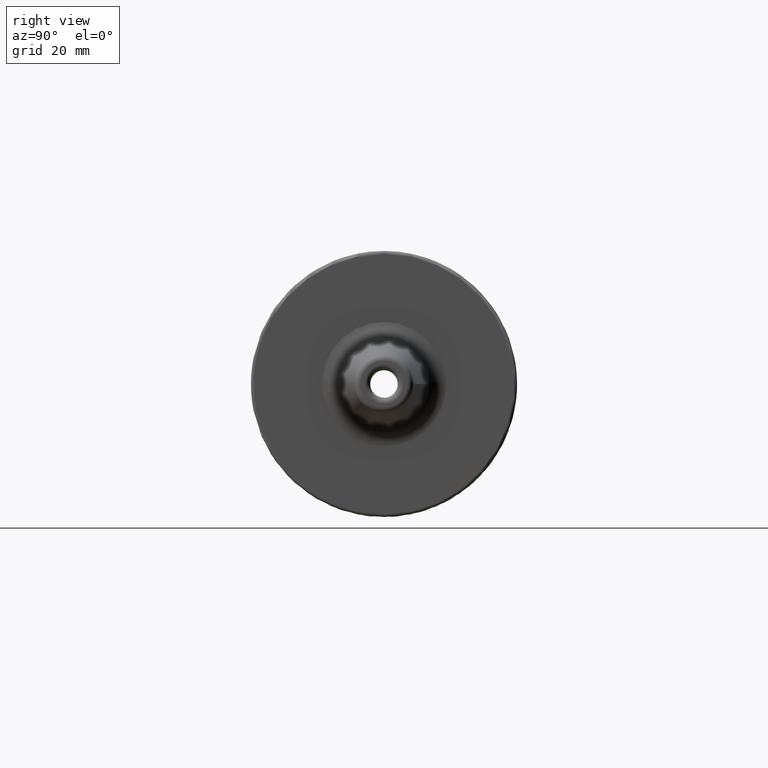
[diagram: clean part render]
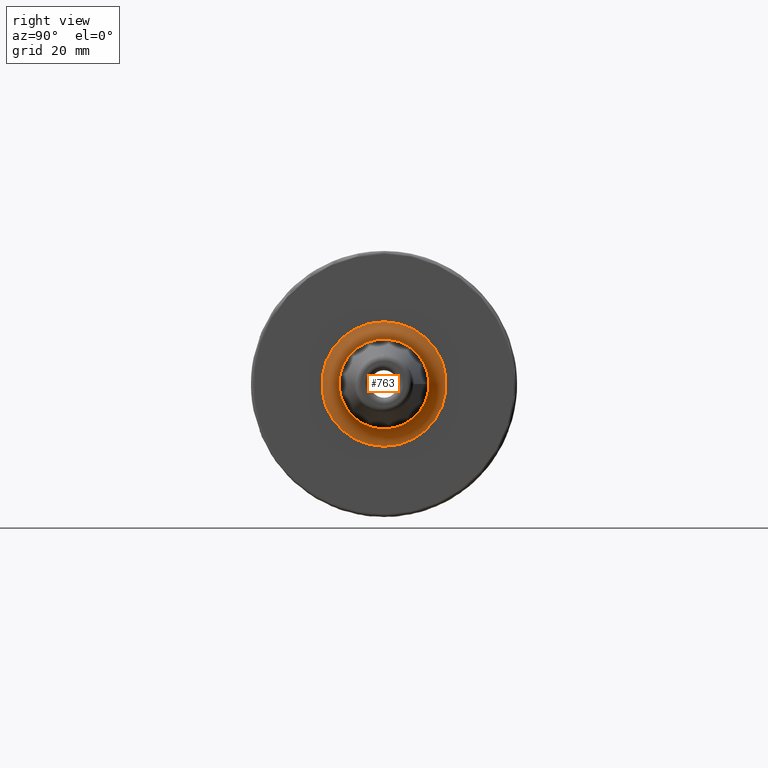
[diagram: same view with one face highlighted and labeled with its STEP entity id]
A machine part, right view. The second image highlights one B-rep face of the part: STEP entity #763.
In plain terms, the highlighted toroidal blend (fillet) surface has major radius 10.7638 mm and minor (blend) radius 3 mm.
Its self-contained STEP definition (entity closure, byte-faithful):
#164=FACE_OUTER_BOUND('',#212,.T.);
#212=EDGE_LOOP('',(#535,#536,#537,#538,#539));
#268=CIRCLE('',#843,7.77308433311076);
#269=CIRCLE('',#844,7.77308433311076);
#270=CIRCLE('',#846,3.);
#271=CIRCLE('',#847,10.7638363343101);
#323=VERTEX_POINT('',#1206);
#324=VERTEX_POINT('',#1208);
#325=VERTEX_POINT('',#1212);
#404=EDGE_CURVE('',#324,#323,#268,.T.);
#405=EDGE_CURVE('',#323,#324,#269,.T.);
#406=EDGE_CURVE('',#324,#325,#270,.T.);
#407=EDGE_CURVE('',#325,#325,#271,.T.);
#535=ORIENTED_EDGE('',*,*,#404,.T.);
#536=ORIENTED_EDGE('',*,*,#405,.T.);
#537=ORIENTED_EDGE('',*,*,#406,.T.);
#538=ORIENTED_EDGE('',*,*,#407,.T.);
#539=ORIENTED_EDGE('',*,*,#406,.F.);
#751=TOROIDAL_SURFACE('',#845,10.7638363343101,3.);
#763=ADVANCED_FACE('',(#164),#751,.F.);
#843=AXIS2_PLACEMENT_3D('',#1209,#966,#967);
#844=AXIS2_PLACEMENT_3D('',#1210,#968,#969);
#845=AXIS2_PLACEMENT_3D('',#1211,#970,#971);
#846=AXIS2_PLACEMENT_3D('',#1213,#972,#973);
#847=AXIS2_PLACEMENT_3D('',#1214,#974,#975);
#966=DIRECTION('center_axis',(-1.,0.,0.));
#967=DIRECTION('ref_axis',(0.,1.,1.22464679914735E-16));
#968=DIRECTION('center_axis',(-1.,0.,0.));
#969=DIRECTION('ref_axis',(0.,1.,1.22464679914735E-16));
#970=DIRECTION('center_axis',(-1.,-1.62798202122572E-21,0.));
#971=DIRECTION('ref_axis',(0.,0.,1.));
#972=DIRECTION('center_axis',(1.62798202122572E-21,-1.,1.22464679914735E-16));
#973=DIRECTION('ref_axis',(0.,-1.22464679914735E-16,-1.));
#974=DIRECTION('center_axis',(1.,1.62798202122572E-21,0.));
#975=DIRECTION('ref_axis',(-1.62798202122572E-21,1.,1.22464679914735E-16));
#1206=CARTESIAN_POINT('',(24.7646227128164,7.77308433311076,9.51928284804654E-16));
#1208=CARTESIAN_POINT('',(24.7646227128164,-9.51928667994645E-16,-7.77308433311076));
#1209=CARTESIAN_POINT('Origin',(24.7646227128164,0.,0.));
#1210=CARTESIAN_POINT('Origin',(24.7646227128164,0.,0.));
#1211=CARTESIAN_POINT('Origin',(25.,0.,0.));
#1212=CARTESIAN_POINT('',(22.,-1.31819465528195E-15,-10.7638363343101));
#1213=CARTESIAN_POINT('Origin',(25.,-1.31818977133589E-15,-10.7638363343101));
#1214=CARTESIAN_POINT('Origin',(22.,-4.88394606367717E-21,0.));